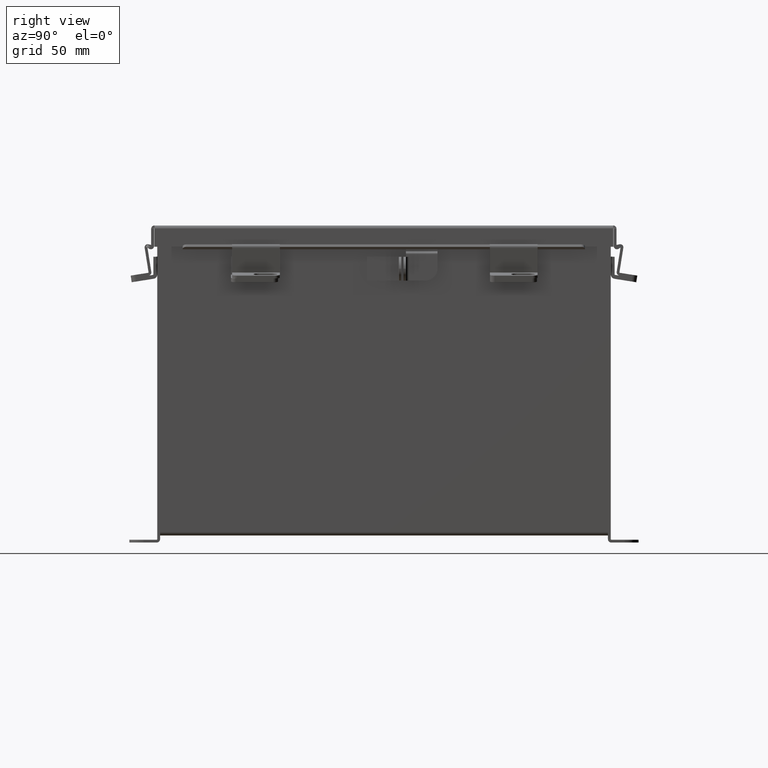
[diagram: clean part render]
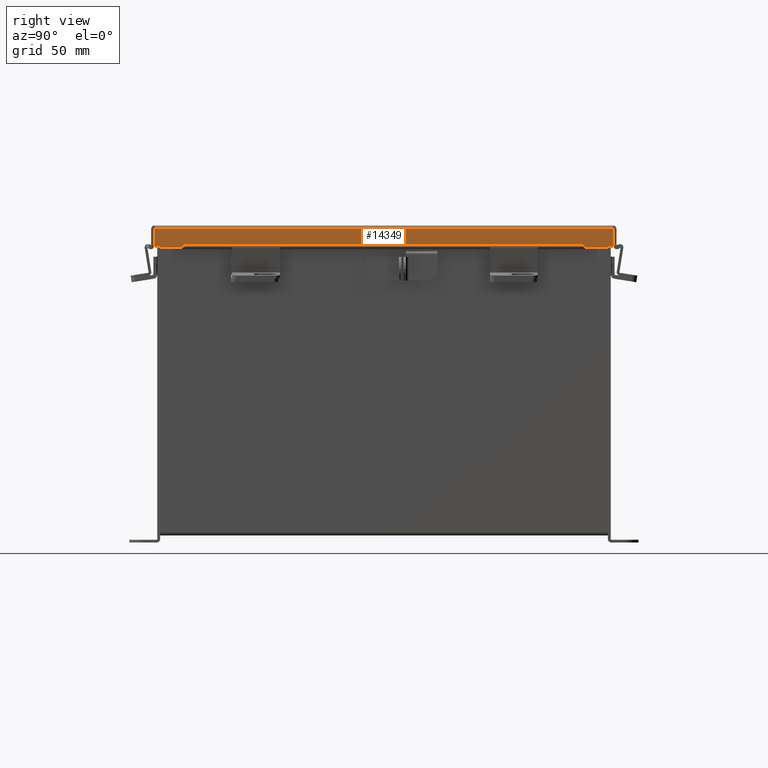
[diagram: same view with one face highlighted and labeled with its STEP entity id]
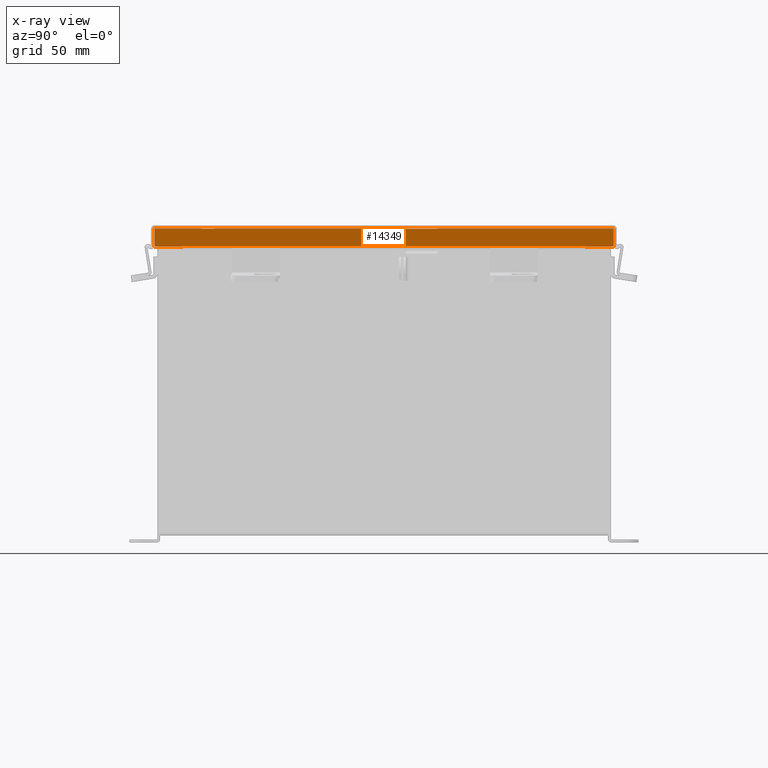
[diagram: x-ray of the same camera — body ghosted, the highlighted face saturated]
A machine part, right view. The second image highlights one B-rep face of the part: STEP entity #14349.
The next image is the same camera in x-ray: the body ghosted, the highlighted face saturated — about 0% of this face is hidden behind the body in this view.
In plain terms, the highlighted planar face has unit normal (-1, 0, -0).
Its self-contained STEP definition (entity closure, byte-faithful):
#48 = CARTESIAN_POINT ( 'NONE',  ( -5.156249999999999100, -6.074478932188134700, -2.338593775587836700E-014 ) ) ;
#143 = CARTESIAN_POINT ( 'NONE',  ( -5.156249999999999100, 0.0000000000000000000, -2.338593775587836700E-014 ) ) ;
#883 = CARTESIAN_POINT ( 'NONE',  ( -5.156250000000000900, 6.074478932188137400, 0.4872999999999997300 ) ) ;
#1068 = ORIENTED_EDGE ( 'NONE', *, *, #11986, .F. ) ;
#1175 = DIRECTION ( 'NONE',  ( -7.009925220120533000E-014, 0.0000000000000000000, 1.000000000000000000 ) ) ;
#1317 = DIRECTION ( 'NONE',  ( -0.0000000000000000000, 1.000000000000000000, 0.0000000000000000000 ) ) ;
#1550 = DIRECTION ( 'NONE',  ( 1.000000000000000000, 0.0000000000000000000, 4.484872552701437800E-015 ) ) ;
#1692 = LINE ( 'NONE', #12486, #5768 ) ;
#1770 = ORIENTED_EDGE ( 'NONE', *, *, #13611, .T. ) ;
#2162 = ORIENTED_EDGE ( 'NONE', *, *, #12571, .T. ) ;
#2723 = ORIENTED_EDGE ( 'NONE', *, *, #14072, .F. ) ;
#2967 = LINE ( 'NONE', #14692, #16995 ) ;
#3535 = CARTESIAN_POINT ( 'NONE',  ( -5.156250000000000900, -5.324478932188134700, 0.4717115427318790400 ) ) ;
#3552 = VERTEX_POINT ( 'NONE', #8559 ) ;
#4016 = VECTOR ( 'NONE', #1317, 39.37007874015748100 ) ;
#4076 = CARTESIAN_POINT ( 'NONE',  ( -5.156250000000000900, 0.0000000000000000000, 0.4872999999999997300 ) ) ;
#4131 = DIRECTION ( 'NONE',  ( -4.484872552701437800E-015, 0.0000000000000000000, 1.000000000000000000 ) ) ;
#4190 = VERTEX_POINT ( 'NONE', #15882 ) ;
#4344 = DIRECTION ( 'NONE',  ( -4.484872552701437800E-015, 0.0000000000000000000, 1.000000000000000000 ) ) ;
#4461 = LINE ( 'NONE', #4076, #4016 ) ;
#4479 = VERTEX_POINT ( 'NONE', #15139 ) ;
#4901 = VERTEX_POINT ( 'NONE', #13683 ) ;
#5175 = DIRECTION ( 'NONE',  ( -0.0000000000000000000, 1.000000000000000000, 0.0000000000000000000 ) ) ;
#5768 = VECTOR ( 'NONE', #4344, 39.37007874015748100 ) ;
#5935 = FACE_OUTER_BOUND ( 'NONE', #14509, .T. ) ;
#6304 = CARTESIAN_POINT ( 'NONE',  ( -5.156250000000000900, -5.324478932188134700, 0.4717115427318790400 ) ) ;
#6322 = LINE ( 'NONE', #15964, #9955 ) ;
#6445 = DIRECTION ( 'NONE',  ( -0.0000000000000000000, 1.000000000000000000, -0.0000000000000000000 ) ) ;
#7785 = EDGE_CURVE ( 'NONE', #4901, #16195, #4461, .T. ) ;
#8164 = AXIS2_PLACEMENT_3D ( 'NONE', #143, #1550, #11079 ) ;
#8234 = VERTEX_POINT ( 'NONE', #11606 ) ;
#8293 = LINE ( 'NONE', #6304, #15117 ) ;
#8347 = PLANE ( 'NONE',  #8164 ) ;
#8559 = CARTESIAN_POINT ( 'NONE',  ( -5.156250000000000900, 5.324478932188135600, 0.4717115427318790400 ) ) ;
#9955 = VECTOR ( 'NONE', #6445, 39.37007874015748100 ) ;
#10048 = LINE ( 'NONE', #14403, #13673 ) ;
#10143 = DIRECTION ( 'NONE',  ( -0.0000000000000000000, -1.000000000000000000, -0.0000000000000000000 ) ) ;
#10191 = VECTOR ( 'NONE', #10143, 39.37007874015748100 ) ;
#10484 = ORIENTED_EDGE ( 'NONE', *, *, #12819, .F. ) ;
#10925 = VERTEX_POINT ( 'NONE', #3535 ) ;
#11079 = DIRECTION ( 'NONE',  ( 4.484872552701437800E-015, 0.0000000000000000000, -1.000000000000000000 ) ) ;
#11376 = EDGE_CURVE ( 'NONE', #3552, #10925, #17443, .T. ) ;
#11606 = CARTESIAN_POINT ( 'NONE',  ( -5.156250000000000900, -5.324478932188135600, 0.4872999999999997300 ) ) ;
#11986 = EDGE_CURVE ( 'NONE', #10925, #8234, #8293, .T. ) ;
#12486 = CARTESIAN_POINT ( 'NONE',  ( -5.156249999999999100, 6.074478932188137400, -3.350199796867981300E-016 ) ) ;
#12571 = EDGE_CURVE ( 'NONE', #16453, #8234, #2967, .T. ) ;
#12623 = ORIENTED_EDGE ( 'NONE', *, *, #7785, .T. ) ;
#12722 = LINE ( 'NONE', #48, #17223 ) ;
#12819 = EDGE_CURVE ( 'NONE', #4479, #16195, #1692, .T. ) ;
#13611 = EDGE_CURVE ( 'NONE', #4190, #16453, #12722, .T. ) ;
#13673 = VECTOR ( 'NONE', #17164, 39.37007874015748100 ) ;
#13683 = CARTESIAN_POINT ( 'NONE',  ( -5.156250000000000900, 5.324478932188136500, 0.4872999999999997300 ) ) ;
#14072 = EDGE_CURVE ( 'NONE', #4190, #4479, #6322, .T. ) ;
#14089 = ORIENTED_EDGE ( 'NONE', *, *, #11376, .F. ) ;
#14236 = CARTESIAN_POINT ( 'NONE',  ( -5.156250000000000900, 5.324478932188136500, 0.4717115427318790400 ) ) ;
#14349 = ADVANCED_FACE ( 'NONE', ( #5935 ), #8347, .F. ) ;
#14403 = CARTESIAN_POINT ( 'NONE',  ( -5.156250000000003600, 5.324478932188136500, 0.4872999999999994000 ) ) ;
#14509 = EDGE_LOOP ( 'NONE', ( #16214, #12623, #10484, #2723, #1770, #2162, #1068, #14089 ) ) ;
#14692 = CARTESIAN_POINT ( 'NONE',  ( -5.156250000000000900, 0.0000000000000000000, 0.4872999999999997300 ) ) ;
#15117 = VECTOR ( 'NONE', #1175, 39.37007874015748100 ) ;
#15139 = CARTESIAN_POINT ( 'NONE',  ( -5.156249999999999100, 6.074478932188137400, 0.01299999999999977400 ) ) ;
#15882 = CARTESIAN_POINT ( 'NONE',  ( -5.156249999999999100, -6.074478932188134700, 0.01299999999999978100 ) ) ;
#15964 = CARTESIAN_POINT ( 'NONE',  ( -5.156249999999999100, 6.156249999999999100, 0.01299999999999978100 ) ) ;
#16195 = VERTEX_POINT ( 'NONE', #883 ) ;
#16214 = ORIENTED_EDGE ( 'NONE', *, *, #16544, .F. ) ;
#16453 = VERTEX_POINT ( 'NONE', #17727 ) ;
#16544 = EDGE_CURVE ( 'NONE', #4901, #3552, #10048, .T. ) ;
#16995 = VECTOR ( 'NONE', #5175, 39.37007874015748100 ) ;
#17164 = DIRECTION ( 'NONE',  ( 1.401985044024137100E-013, -7.009925220120685700E-014, -1.000000000000000000 ) ) ;
#17223 = VECTOR ( 'NONE', #4131, 39.37007874015748100 ) ;
#17443 = LINE ( 'NONE', #14236, #10191 ) ;
#17727 = CARTESIAN_POINT ( 'NONE',  ( -5.156250000000000900, -6.074478932188134700, 0.4872999999999997300 ) ) ;